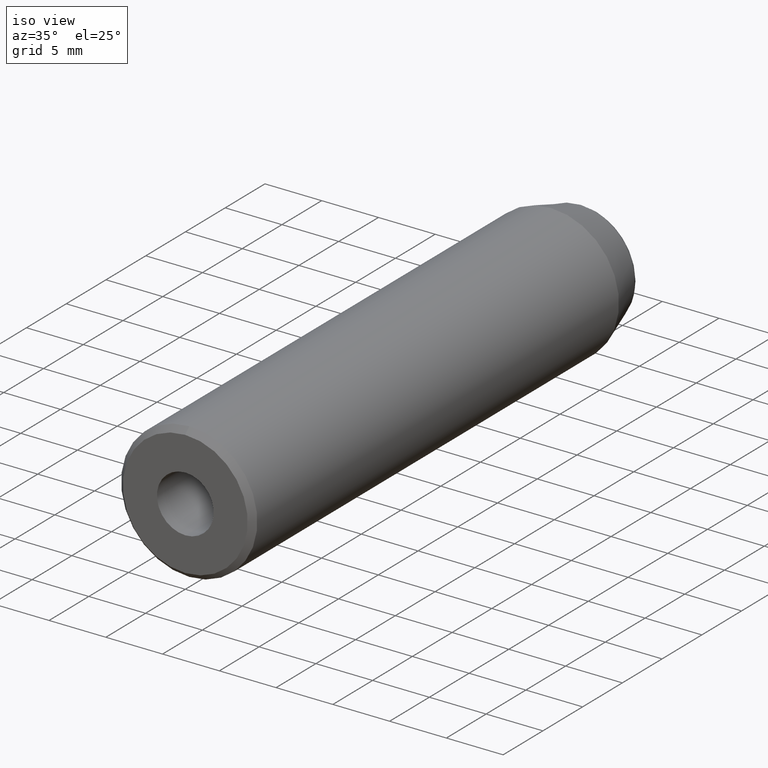
[diagram: clean part render]
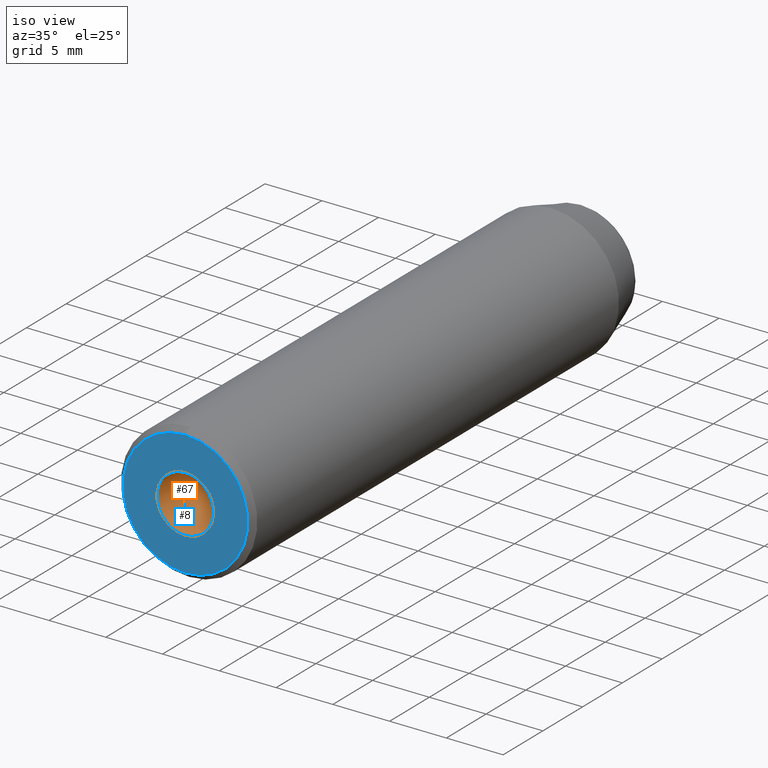
[diagram: same view with the hole feature highlighted: cylindrical wall and planar end face, labeled with their STEP entity ids]
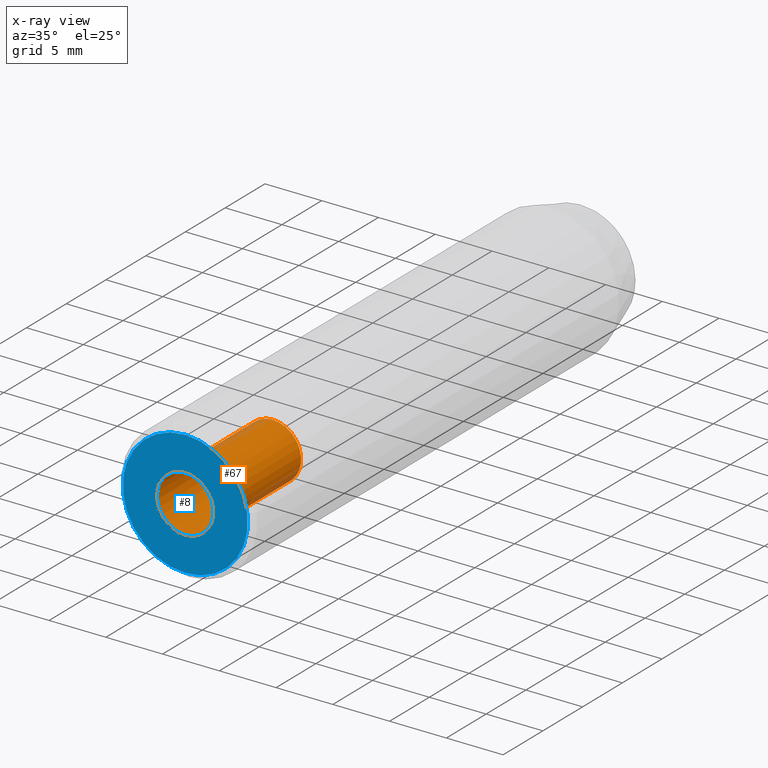
[diagram: x-ray of the same camera — body ghosted, the hole faces saturated]
A machine part, iso view. The highlighted faces form one hole feature of diameter 5 mm: the cylindrical wall (entity #67, orange) and its adjacent planar end face (entity #8, blue) — they share a circular edge in the B-rep.
The next image is the same camera in x-ray (body ghosted, the hole faces saturated) — the bore reads through the body.
Wall:
#4 = EDGE_LOOP ( 'NONE', ( #291 ) ) ;
#6 = ORIENTED_EDGE ( 'NONE', *, *, #269, .T. ) ;
#11 = AXIS2_PLACEMENT_3D ( 'NONE', #279, #66, #117 ) ;
#35 = CYLINDRICAL_SURFACE ( 'NONE', #57, 2.499999999999998224 ) ;
#43 = DIRECTION ( 'NONE',  ( -0.000000000000000000, -1.000000000000000000, -0.000000000000000000 ) ) ;
#45 = EDGE_CURVE ( 'NONE', #301, #301, #257, .T. ) ;
#57 = AXIS2_PLACEMENT_3D ( 'NONE', #206, #43, #91 ) ;
#66 = DIRECTION ( 'NONE',  ( -0.000000000000000000, -1.000000000000000000, -0.000000000000000000 ) ) ;
#67 = ADVANCED_FACE ( 'NONE', ( #109, #110 ), #35, .F. ) ;
#68 = CARTESIAN_POINT ( 'NONE',  ( 0.000000000000000000, 1.040949779275260987E-16, 0.000000000000000000 ) ) ;
#91 = DIRECTION ( 'NONE',  ( 0.000000000000000000, 0.000000000000000000, -1.000000000000000000 ) ) ;
#94 = CARTESIAN_POINT ( 'NONE',  ( 0.000000000000000000, 11.00000000000000000, -2.499999999999998224 ) ) ;
#109 = FACE_OUTER_BOUND ( 'NONE', #4, .T. ) ;
#110 = FACE_OUTER_BOUND ( 'NONE', #159, .T. ) ;
#117 = DIRECTION ( 'NONE',  ( 0.000000000000000000, 0.000000000000000000, -1.000000000000000000 ) ) ;
#119 = DIRECTION ( 'NONE',  ( -0.000000000000000000, -1.000000000000000000, -0.000000000000000000 ) ) ;
#158 = VERTEX_POINT ( 'NONE', #238 ) ;
#159 = EDGE_LOOP ( 'NONE', ( #6 ) ) ;
#190 = DIRECTION ( 'NONE',  ( 0.000000000000000000, 0.000000000000000000, -1.000000000000000000 ) ) ;
#206 = CARTESIAN_POINT ( 'NONE',  ( 0.000000000000000000, 0.000000000000000000, 0.000000000000000000 ) ) ;
#210 = AXIS2_PLACEMENT_3D ( 'NONE', #68, #119, #190 ) ;
#237 = CIRCLE ( 'NONE', #210, 2.499999999999998224 ) ;
#238 = CARTESIAN_POINT ( 'NONE',  ( 0.000000000000000000, 1.040949779275260987E-16, -2.499999999999998224 ) ) ;
#257 = CIRCLE ( 'NONE', #11, 2.499999999999998224 ) ;
#269 = EDGE_CURVE ( 'NONE', #158, #158, #237, .T. ) ;
#279 = CARTESIAN_POINT ( 'NONE',  ( 0.000000000000000000, 11.00000000000000000, 0.000000000000000000 ) ) ;
#291 = ORIENTED_EDGE ( 'NONE', *, *, #45, .F. ) ;
#301 = VERTEX_POINT ( 'NONE', #94 ) ;
End face:
#2 = ORIENTED_EDGE ( 'NONE', *, *, #5, .F. ) ;
#5 = EDGE_CURVE ( 'NONE', #161, #161, #267, .T. ) ;
#8 = ADVANCED_FACE ( 'NONE', ( #281, #275 ), #253, .F. ) ;
#33 = AXIS2_PLACEMENT_3D ( 'NONE', #157, #61, #303 ) ;
#40 = ORIENTED_EDGE ( 'NONE', *, *, #269, .F. ) ;
#61 = DIRECTION ( 'NONE',  ( 0.000000000000000000, 1.000000000000000000, 0.000000000000000000 ) ) ;
#68 = CARTESIAN_POINT ( 'NONE',  ( 0.000000000000000000, 1.040949779275260987E-16, 0.000000000000000000 ) ) ;
#93 = EDGE_LOOP ( 'NONE', ( #2 ) ) ;
#112 = AXIS2_PLACEMENT_3D ( 'NONE', #115, #231, #134 ) ;
#115 = CARTESIAN_POINT ( 'NONE',  ( 0.000000000000000000, 0.000000000000000000, 0.000000000000000000 ) ) ;
#119 = DIRECTION ( 'NONE',  ( -0.000000000000000000, -1.000000000000000000, -0.000000000000000000 ) ) ;
#134 = DIRECTION ( 'NONE',  ( 0.000000000000000000, -0.000000000000000000, 1.000000000000000000 ) ) ;
#157 = CARTESIAN_POINT ( 'NONE',  ( 0.000000000000000000, 0.000000000000000000, 0.000000000000000000 ) ) ;
#158 = VERTEX_POINT ( 'NONE', #238 ) ;
#161 = VERTEX_POINT ( 'NONE', #256 ) ;
#190 = DIRECTION ( 'NONE',  ( 0.000000000000000000, 0.000000000000000000, -1.000000000000000000 ) ) ;
#210 = AXIS2_PLACEMENT_3D ( 'NONE', #68, #119, #190 ) ;
#231 = DIRECTION ( 'NONE',  ( 0.000000000000000000, 1.000000000000000000, 0.000000000000000000 ) ) ;
#237 = CIRCLE ( 'NONE', #210, 2.499999999999998224 ) ;
#238 = CARTESIAN_POINT ( 'NONE',  ( 0.000000000000000000, 1.040949779275260987E-16, -2.499999999999998224 ) ) ;
#253 = PLANE ( 'NONE',  #112 ) ;
#256 = CARTESIAN_POINT ( 'NONE',  ( 0.000000000000000000, 0.000000000000000000, 5.500000000040472514 ) ) ;
#267 = CIRCLE ( 'NONE', #33, 5.500000000040472514 ) ;
#269 = EDGE_CURVE ( 'NONE', #158, #158, #237, .T. ) ;
#274 = EDGE_LOOP ( 'NONE', ( #40 ) ) ;
#275 = FACE_OUTER_BOUND ( 'NONE', #93, .T. ) ;
#281 = FACE_BOUND ( 'NONE', #274, .T. ) ;
#303 = DIRECTION ( 'NONE',  ( 0.000000000000000000, 0.000000000000000000, 1.000000000000000000 ) ) ;